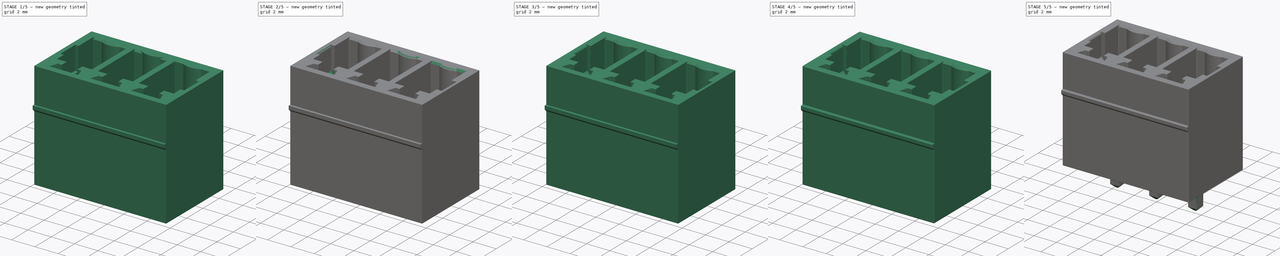
[diagram: build sequence overview — one tinted view per stage of 5, left to right]
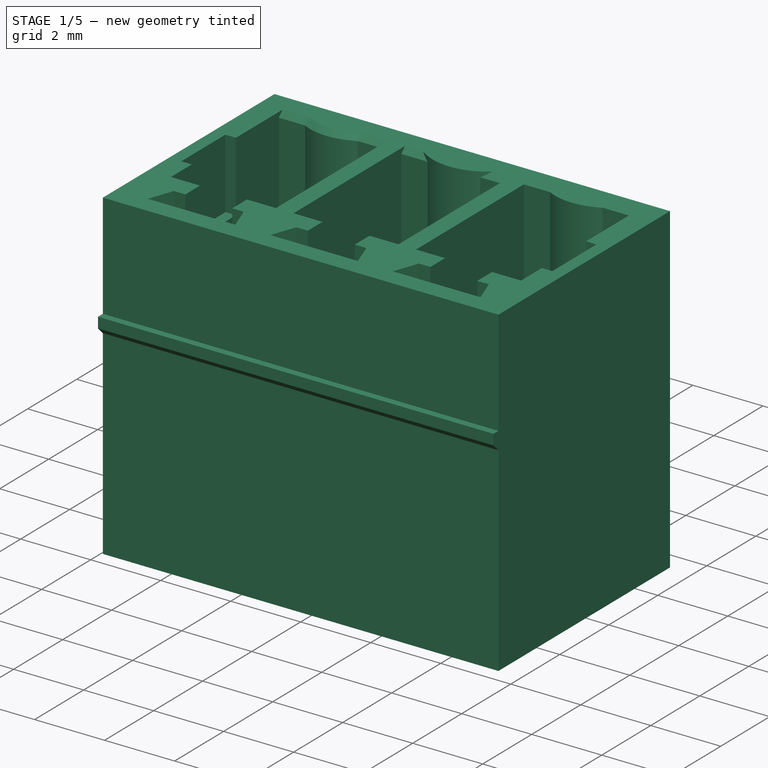
[diagram: stage 1 of 5 — iso view after this stage's code; geometry added in this stage tinted green]
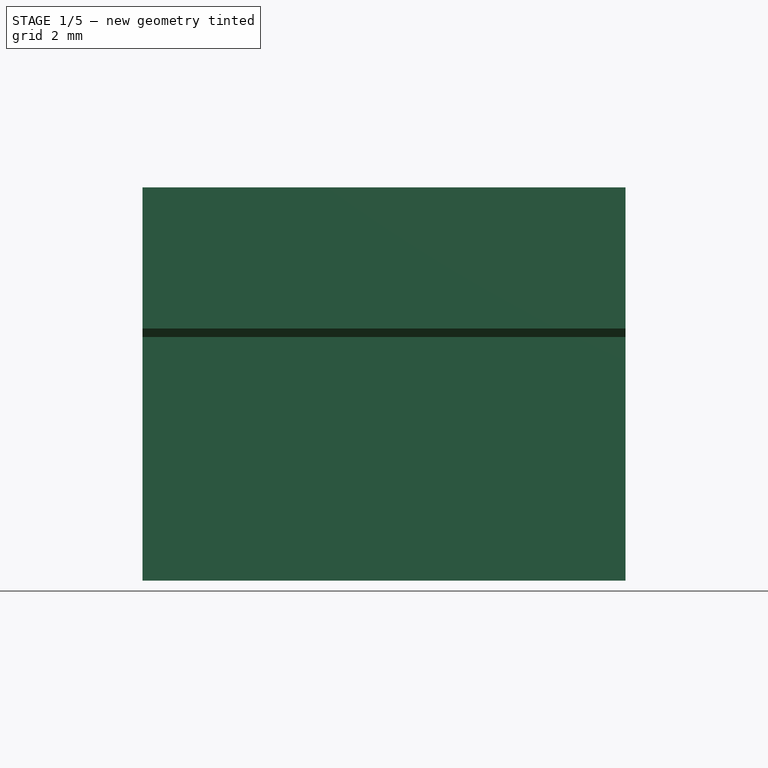
[diagram: stage 1 of 5 — front view after this stage's code; geometry added in this stage tinted green]
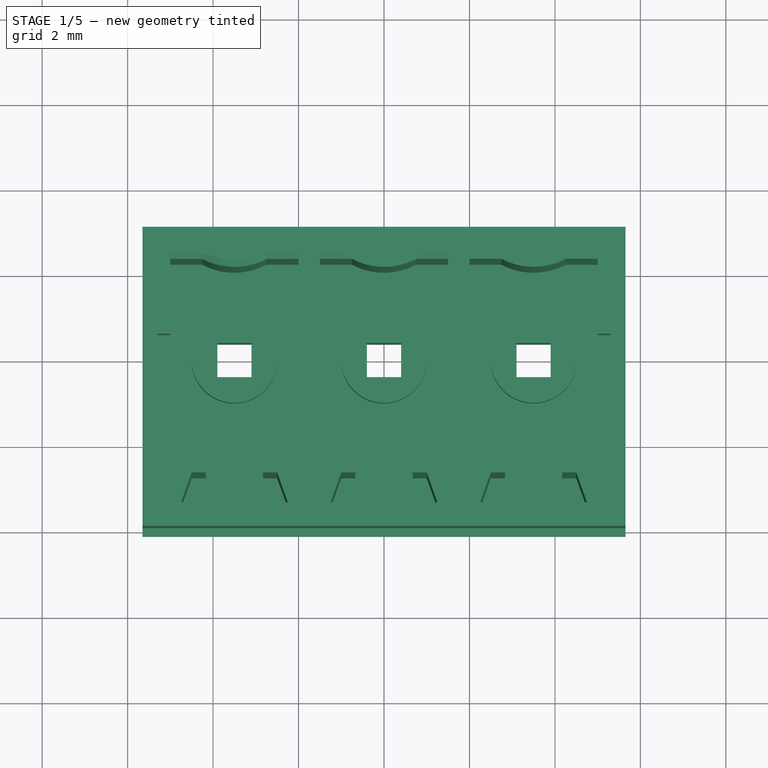
[diagram: stage 1 of 5 — top view after this stage's code; geometry added in this stage tinted green]
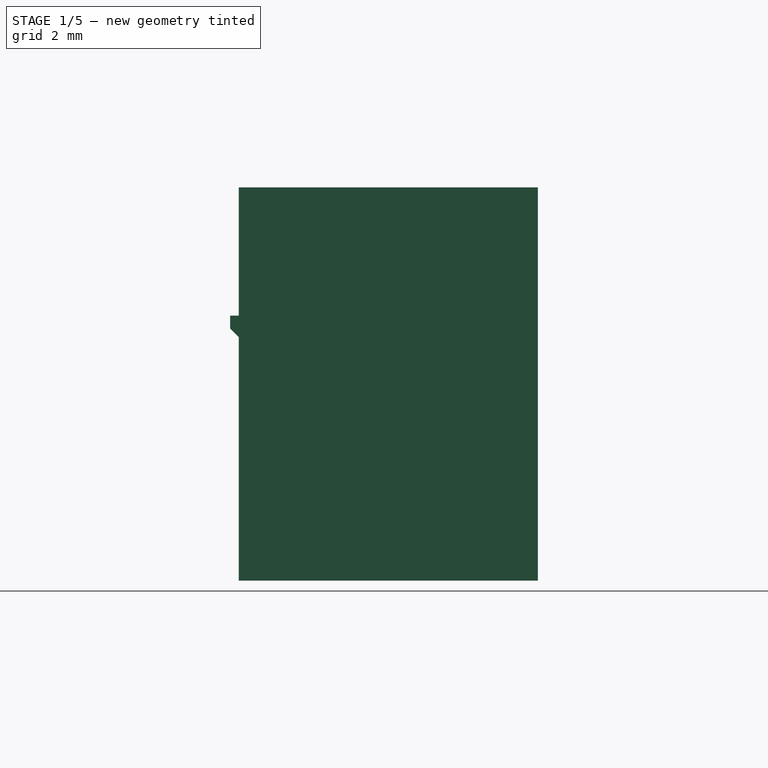
[diagram: stage 1 of 5 — right view after this stage's code; geometry added in this stage tinted green]
FCSTD DOCUMENT  (FreeCAD 0.15R4671 (Git))
Label: DEGSON_15EDGVC-3.5-03P-14-00A
License: All rights reserved
LicenseURL: http://en.wikipedia.org/wiki/All_rights_reserved
objects: PartDesign::Fillet×35, PartDesign::Chamfer×18, Sketcher::SketchObject×7, PartDesign::Pad×5, PartDesign::Pocket×2, PartDesign::LinearPattern×2, Image::ImagePlane×1, Part::Cut×1
note: 77 computed .brp shape members not serialized (recipe doc carries the construction recipe); baked Part::Feature solids carry a one-line shape summary decoded from their .brp

FEATURE [Sketcher::SketchObject] Sketch001
  Placement = pos=(0,0,0) rot=(-1,0,0;3.14159rad)
  sketch-geometry (4):
    g0: LineSegment StartX=-5.65 StartY=4 StartZ=0 EndX=5.65 EndY=4 EndZ=0
    g1: LineSegment StartX=5.65 StartY=4 StartZ=0 EndX=5.65 EndY=-3 EndZ=0
    g2: LineSegment StartX=5.65 StartY=-3 StartZ=0 EndX=-5.65 EndY=-3 EndZ=0
    g3: LineSegment StartX=-5.65 StartY=-3 StartZ=0 EndX=-5.65 EndY=4 EndZ=0
  constraints (12):
    c: Coincident(g0,g1)
    c: Coincident(g1,g2)
    c: Coincident(g2,g3)
    c: Coincident(g3,g0)
    c: Horizontal(g0)
    c: Horizontal(g2)
    c: Vertical(g1)
    c: Vertical(g3)
    c: DistanceY(g3) = 7
    c: DistanceY(g-1,g2) = -3
    c: DistanceX(g0) = 11.3
    c: DistanceX(g-1,g0) = -5.65
FEATURE [PartDesign::Pad] Pad001
  Length = 9.2
  Length2 = 100
  Placement = pos=(0,0,0) rot=(-1,0,0;3.14159rad)
  Sketch = -> Sketch001
  Type = 0
FEATURE [Sketcher::SketchObject] Sketch002
  Support = -> Pad001 [Face5]
  sketch-geometry (14):
    g0: LineSegment StartX=-2 StartY=2.25 StartZ=0 EndX=-2.75 EndY=2.25 EndZ=0
    g1: LineSegment StartX=-4.25 StartY=2.25 StartZ=0 EndX=-5 EndY=2.25 EndZ=0
    g2: LineSegment StartX=-5 StartY=2.25 StartZ=0 EndX=-5 EndY=-2.15 EndZ=0
    g3: LineSegment StartX=-5 StartY=-2.15 StartZ=0 EndX=-4.17 EndY=-2.15 EndZ=0
    g4: LineSegment StartX=-4.17 StartY=-2.15 StartZ=0 EndX=-4.17 EndY=-2.75 EndZ=0
    g5: LineSegment StartX=-4.17 StartY=-2.75 StartZ=0 EndX=-4.5 EndY=-2.75 EndZ=0
    g6: LineSegment StartX=-4.5 StartY=-2.75 StartZ=0 EndX=-4.75 EndY=-3.45 EndZ=0
    g7: LineSegment StartX=-4.75 StartY=-3.45 StartZ=0 EndX=-2.25 EndY=-3.45 EndZ=0
    g8: LineSegment StartX=-2.25 StartY=-3.45 StartZ=0 EndX=-2.5 EndY=-2.75 EndZ=0
    g9: LineSegment StartX=-2.5 StartY=-2.75 StartZ=0 EndX=-2.83 EndY=-2.75 EndZ=0
    g10: LineSegment StartX=-2.83 StartY=-2.75 StartZ=0 EndX=-2.83 EndY=-2.15 EndZ=0
    g11: LineSegment StartX=-2.83 StartY=-2.15 StartZ=0 EndX=-2 EndY=-2.15 EndZ=0
    g12: LineSegment StartX=-2 StartY=-2.15 StartZ=0 EndX=-2 EndY=2.25 EndZ=0
    g13: ArcOfCircle CenterX=-3.5 CenterY=3.66333 CenterZ=0 NormalX=0 NormalY=0 NormalZ=1 Radius=1.6 StartAngle=4.22451 EndAngle=5.20026
  constraints (43):
    c: Horizontal(g0)
    c: Horizontal(g1)
    c: Equal(g1,g0)
    c: Coincident(g1,g2)
    c: Vertical(g2)
    c: Coincident(g2,g3)
    c: Horizontal(g3)
    c: Coincident(g3,g4)
    c: Vertical(g4)
    c: Coincident(g4,g5)
    c: Horizontal(g5)
    c: Coincident(g5,g6)
    c: Coincident(g6,g7)
    c: Horizontal(g7)
    c: Coincident(g8,g9)
    c: Horizontal(g9)
    c: Coincident(g9,g10)
    c: Vertical(g10)
    c: Coincident(g10,g11)
    c: Horizontal(g11)
    c: Coincident(g11,g12)
    c: Vertical(g12)
    c: Coincident(g0,g12)
    c: Equal(g11,g3)
    c: Equal(g2,g12)
    c: Equal(g10,g4)
    c: Equal(g5,g9)
    c: Coincident(g8,g7)
    c: Coincident(g13,g0)
    c: Coincident(g13,g1)
    c: DistanceX(g5,g8) = 2
    c: DistanceX(g7) = 2.5
    c: DistanceY(g6,g5) = 0.7
    c: DistanceX(g5) = -0.33
    c: DistanceY(g-1,g6) = -3.45
    c: DistanceX(g2,g11) = 3
    c: DistanceY(g2) = -4.4
    c: Radius(g13) = 1.6
    c: DistanceY(g4) = -0.6
    c: DistanceY(g-1,g0) = 2.25
    c: DistanceX(g0,g1) = -1.5
    c: DistanceX(g-1,g2) = -5
    c: Angle(g7,g6) = 1.22777
FEATURE [Image::ImagePlane] ImagePlane
  Placement = pos=(0,-0.55,0) rot=(0,0,1;0rad)
  XSize = 11.3
  YSize = 7
FEATURE [PartDesign::Pocket] Pocket
  Length = 8
  Placement = pos=(0,0,0) rot=(-1,0,0;3.14159rad)
  Sketch = -> Sketch002
  Type = 0
FEATURE [PartDesign::LinearPattern] LinearPattern
  Direction = -> Sketch002 [H_Axis]
  Length = 7
  Occurrences = 3
  Originals = -> [Pocket]
  Placement = pos=(0,0,0) rot=(-1,0,0;3.14159rad)
FEATURE [Sketcher::SketchObject] Sketch003
  Support = -> LinearPattern [Face4]
  sketch-geometry (8):
    g0: LineSegment StartX=-4 StartY=0.5 StartZ=0 EndX=-5.3 EndY=0.5 EndZ=0
    g1: LineSegment StartX=-5.3 StartY=0.5 StartZ=0 EndX=-5.3 EndY=-1.3 EndZ=0
    g2: LineSegment StartX=-5.3 StartY=-1.3 StartZ=0 EndX=-4 EndY=-1.3 EndZ=0
    g3: LineSegment StartX=-4 StartY=-1.3 StartZ=0 EndX=-4 EndY=0.5 EndZ=0
    g4: LineSegment StartX=5.3 StartY=0.5 StartZ=0 EndX=4 EndY=0.5 EndZ=0
    g5: LineSegment StartX=4 StartY=0.5 StartZ=0 EndX=4 EndY=-1.3 EndZ=0
    g6: LineSegment StartX=4 StartY=-1.3 StartZ=0 EndX=5.3 EndY=-1.3 EndZ=0
    g7: LineSegment StartX=5.3 StartY=-1.3 StartZ=0 EndX=5.3 EndY=0.5 EndZ=0
  constraints (24):
    c: Coincident(g0,g1)
    c: Coincident(g1,g2)
    c: Coincident(g2,g3)
    c: Coincident(g3,g0)
    c: Horizontal(g0)
    c: Horizontal(g2)
    c: Vertical(g1)
    c: Vertical(g3)
    c: DistanceX(g2) = 1.3
    c: DistanceY(g1) = -1.8
    c: DistanceY(g-1,g0) = 0.5
    c: DistanceX(g-1,g2) = -4
    c: Coincident(g4,g5)
    c: Coincident(g5,g6)
    c: Coincident(g6,g7)
    c: Coincident(g7,g4)
    c: Horizontal(g4)
    c: Horizontal(g6)
    c: Vertical(g5)
    c: Vertical(g7)
    c: DistanceY(g-1,g4) = 0.5
    c: DistanceX(g-1,g5) = 4
    c: Equal(g4,g2)
    c: Equal(g7,g1)
FEATURE [PartDesign::Pocket] Pocket001
  Length = 2
  Placement = pos=(0,0,0) rot=(-1,0,0;3.14159rad)
  Sketch = -> Sketch003
  Type = 0
FEATURE [Sketcher::SketchObject] Sketch004
  Placement = pos=(0,0,-2) rot=(1,0,0;3.14159rad)
  sketch-geometry (12):
    g0: LineSegment StartX=-3.9 StartY=0.4 StartZ=0 EndX=-3.1 EndY=0.4 EndZ=0
    g1: LineSegment StartX=-3.1 StartY=0.4 StartZ=0 EndX=-3.1 EndY=-0.4 EndZ=0
    g2: LineSegment StartX=-3.1 StartY=-0.4 StartZ=0 EndX=-3.9 EndY=-0.4 EndZ=0
    g3: LineSegment StartX=-3.9 StartY=-0.4 StartZ=0 EndX=-3.9 EndY=0.4 EndZ=0
    g4: LineSegment StartX=-0.4 StartY=0.4 StartZ=0 EndX=0.4 EndY=0.4 EndZ=0
    g5: LineSegment StartX=0.4 StartY=0.4 StartZ=0 EndX=0.4 EndY=-0.4 EndZ=0
    g6: LineSegment StartX=0.4 StartY=-0.4 StartZ=0 EndX=-0.4 EndY=-0.4 EndZ=0
    g7: LineSegment StartX=-0.4 StartY=-0.4 StartZ=0 EndX=-0.4 EndY=0.4 EndZ=0
    g8: LineSegment StartX=3.1 StartY=0.4 StartZ=0 EndX=3.9 EndY=0.4 EndZ=0
    g9: LineSegment StartX=3.9 StartY=0.4 StartZ=0 EndX=3.9 EndY=-0.4 EndZ=0
    g10: LineSegment StartX=3.9 StartY=-0.4 StartZ=0 EndX=3.1 EndY=-0.4 EndZ=0
    g11: LineSegment StartX=3.1 StartY=-0.4 StartZ=0 EndX=3.1 EndY=0.4 EndZ=0
  constraints (35):
    c: Coincident(g1,g2)
    c: Coincident(g2,g3)
    c: Coincident(g3,g0)
    c: Horizontal(g0)
    c: Horizontal(g2)
    c: Vertical(g3)
    c: Equal(g0,g1)
    c: DistanceX(g0) = 0.8
    c: Coincident(g0,g1)
    c: Vertical(g1)
    c: DistanceX(g-1,g1) = -3.1
    c: DistanceY(g-1,g0) = 0.4
    c: Coincident(g4,g5)
    c: Coincident(g5,g6)
    c: Coincident(g6,g7)
    c: Coincident(g7,g4)
    c: Horizontal(g4)
    c: Horizontal(g6)
    c: Vertical(g5)
    c: Vertical(g7)
    c: Equal(g4,g5)
    c: DistanceX(g4) = 0.8
    c: Symmetric(g4,g5,g-1)
    c: Coincident(g8,g9)
    c: Coincident(g9,g10)
    c: Coincident(g10,g11)
    c: Coincident(g11,g8)
    c: Horizontal(g8)
    c: Horizontal(g10)
    c: Vertical(g9)
    c: Vertical(g11)
    c: Equal(g8,g9)
    c: DistanceX(g8) = 0.8
    c: DistanceX(g-1,g10) = 3.1
    c: DistanceY(g-1,g8) = 0.4
FEATURE [PartDesign::Pad] Pad002
  Length = 10.4
  Length2 = 100
  Placement = pos=(0,0,-2) rot=(1,0,0;3.14159rad)
  Sketch = -> Sketch004
  Type = 0
FEATURE [Sketcher::SketchObject] Sketch005
  Placement = pos=(0,0,-8) rot=(0,0,1;0rad)
  Support = -> Pocket001 [Face55]
  sketch-geometry (1):
    g0: Circle CenterX=-3.5 CenterY=0 CenterZ=0 NormalX=0 NormalY=0 NormalZ=1 Radius=1
  constraints (3):
    c: PointOnObject(g0,g-1)
    c: DistanceX(g-1,g0) = -3.5
    c: Radius(g0) = 1
FEATURE [PartDesign::Pad] Pad003
  Length = 1.2
  Length2 = 100
  Placement = pos=(0,0,0) rot=(-1,0,0;3.14159rad)
  Sketch = -> Sketch005
  Type = 0
FEATURE [PartDesign::LinearPattern] LinearPattern001
  Direction = -> Sketch005 [H_Axis]
  Length = 7
  Occurrences = 3
  Originals = -> [Pad003]
  Placement = pos=(0,0,0) rot=(-1,0,0;3.14159rad)
FEATURE [Part::Cut] Cut
  Base = -> LinearPattern001
  Tool = -> Pad002
FEATURE [Sketcher::SketchObject] Sketch006
  Placement = pos=(0,-4,0) rot=(1,0,0;1.5708rad)
  Support = -> Cut [Face1]
  sketch-geometry (4):
    g0: LineSegment StartX=-5.65 StartY=-3 StartZ=0 EndX=5.65 EndY=-3 EndZ=0
    g1: LineSegment StartX=5.65 StartY=-3 StartZ=0 EndX=5.65 EndY=-3.5 EndZ=0
    g2: LineSegment StartX=5.65 StartY=-3.5 StartZ=0 EndX=-5.65 EndY=-3.5 EndZ=0
    g3: LineSegment StartX=-5.65 StartY=-3.5 StartZ=0 EndX=-5.65 EndY=-3 EndZ=0
  constraints (12):
    c: Coincident(g0,g1)
    c: Coincident(g1,g2)
    c: Coincident(g2,g3)
    c: Coincident(g3,g0)
    c: Horizontal(g0)
    c: Horizontal(g2)
    c: Vertical(g1)
    c: Vertical(g3)
    c: DistanceX(g0) = 11.3
    c: Symmetric(g0,g0,g-2)
    c: DistanceY(g3) = 0.5
    c: DistanceY(g-1,g0) = -3
FEATURE [PartDesign::Pad] Pad004
  Length = 0.2
  Length2 = 100
  Sketch = -> Sketch006
  Type = 0
FEATURE [PartDesign::Chamfer] Chamfer009
  Base = -> Pad004 [Edge3]
  Size = 0.1999
FEATURE [PartDesign::Chamfer] Chamfer010
  Base = -> Chamfer009 [Edge44,Edge28]
  Size = 0.15
FEATURE [PartDesign::Chamfer] Chamfer011
  Base = -> Chamfer010 [Edge2]
  Size = 0.15
FEATURE [PartDesign::Chamfer] Chamfer012
  Base = -> Chamfer011 [Edge41,Edge37]
  Size = 0.15
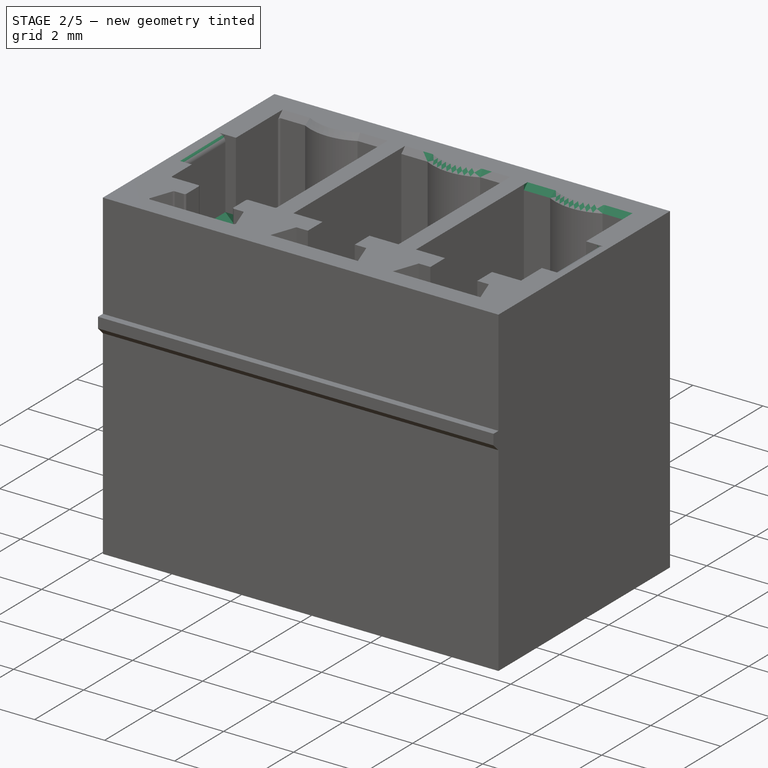
[diagram: stage 2 of 5 — iso view after this stage's code; geometry added in this stage tinted green]
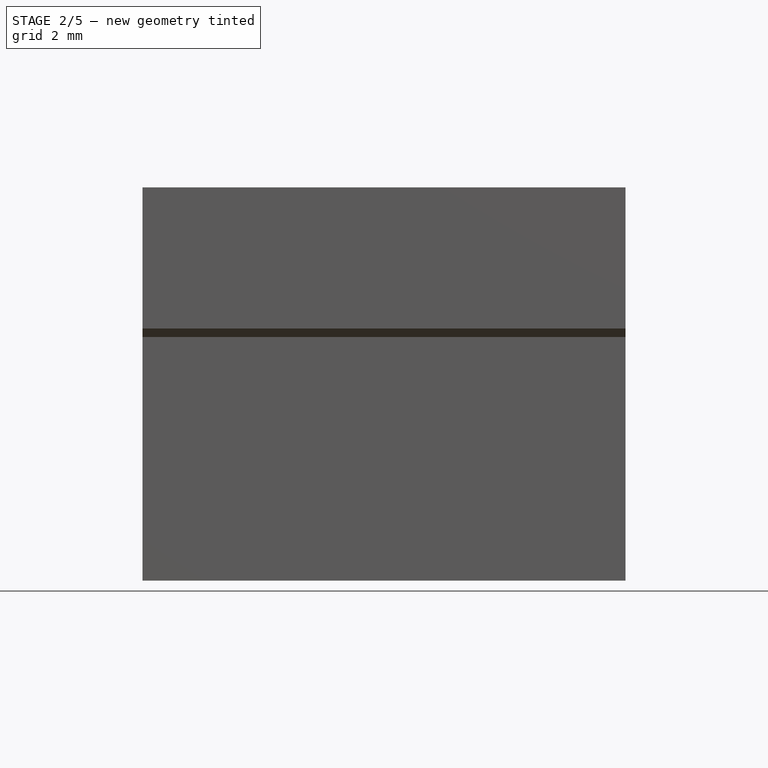
[diagram: stage 2 of 5 — front view after this stage's code; geometry added in this stage tinted green]
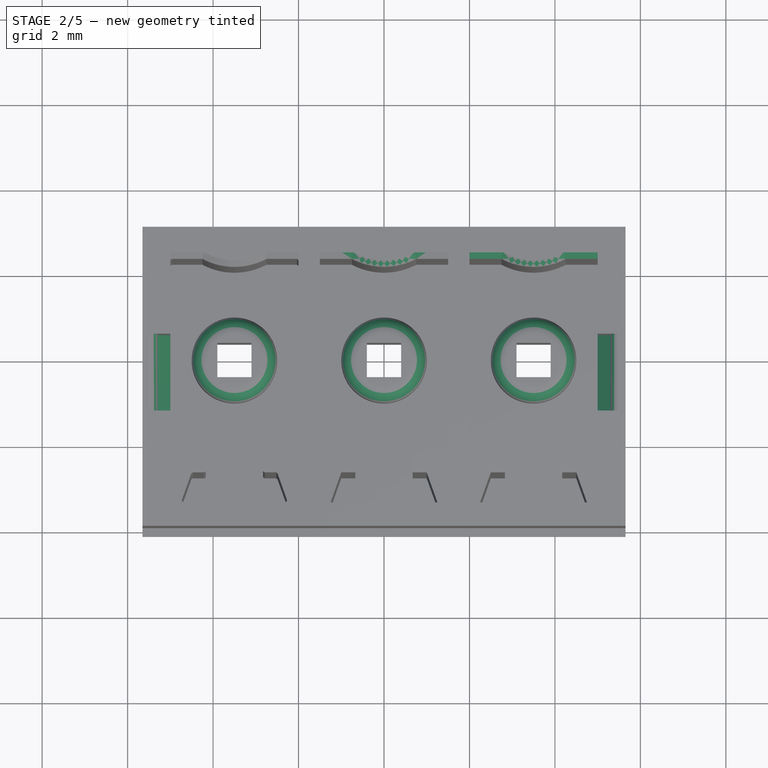
[diagram: stage 2 of 5 — top view after this stage's code; geometry added in this stage tinted green]
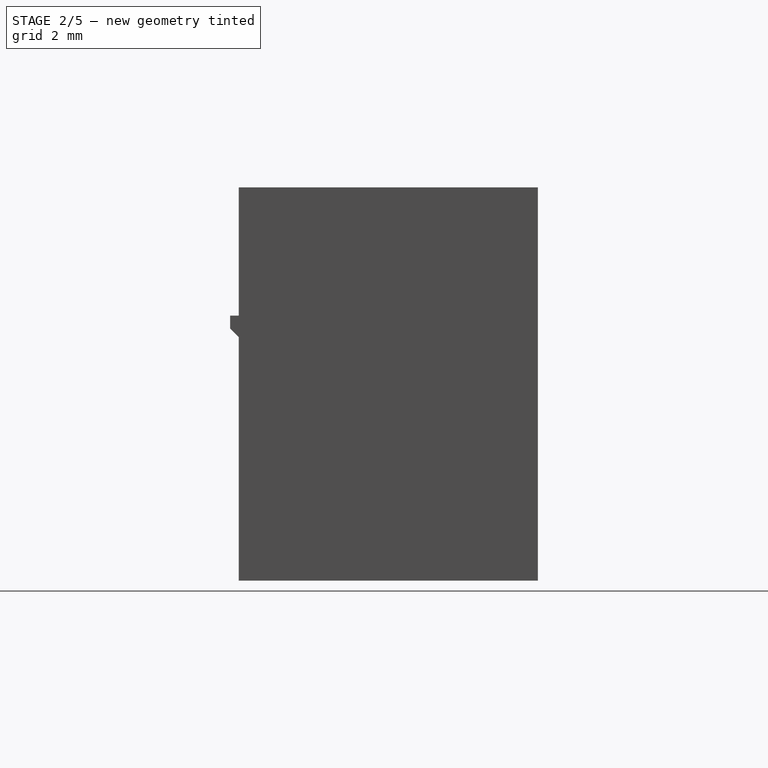
[diagram: stage 2 of 5 — right view after this stage's code; geometry added in this stage tinted green]
FEATURE [PartDesign::Chamfer] Chamfer013
  Base = -> Chamfer012 [Edge2]
  Size = 0.15
FEATURE [PartDesign::Chamfer] Chamfer014
  Base = -> Chamfer013 [Edge52,Edge54]
  Size = 0.15
FEATURE [PartDesign::Chamfer] Chamfer015
  Base = -> Chamfer014 [Edge2]
  Size = 0.15
FEATURE [PartDesign::Fillet] Fillet003
  Base = -> Chamfer015 [Edge243]
  Radius = 0.4
FEATURE [PartDesign::Fillet] Fillet004
  Base = -> Fillet003 [Edge266]
  Radius = 0.4
FEATURE [PartDesign::Fillet] Fillet005
  Base = -> Fillet004 [Edge171]
  Radius = 0.4
FEATURE [PartDesign::Chamfer] Chamfer016
  Base = -> Fillet005 [Edge225]
  Size = 0.29999
FEATURE [PartDesign::Chamfer] Chamfer017
  Base = -> Chamfer016 [Edge131]
  Size = 0.29999
FEATURE [PartDesign::Fillet] Fillet006
  Base = -> Chamfer017 [Edge68]
  Radius = 0.2
FEATURE [PartDesign::Fillet] Fillet007
  Base = -> Fillet006 [Edge45]
  Radius = 0.2
FEATURE [PartDesign::Fillet] Fillet008
  Base = -> Fillet007 [Edge163,Edge161,Edge136,Edge135]
  Radius = 0.05
FEATURE [PartDesign::Fillet] Fillet009
  Base = -> Fillet008 [Edge95,Edge118,Edge98,Edge113,Edge111,Edge102,Edge107,Edge109]
  Radius = 0.05
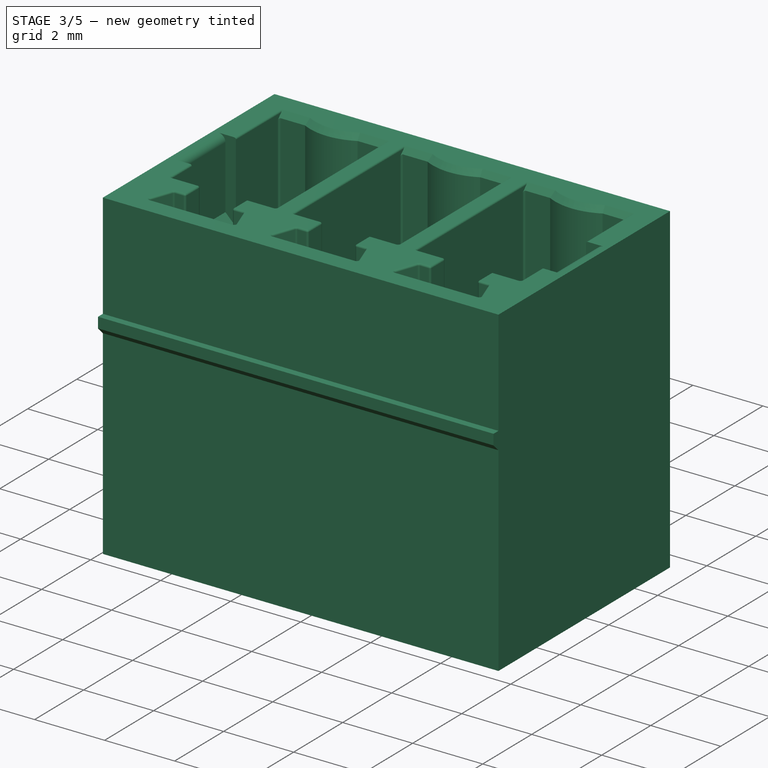
[diagram: stage 3 of 5 — iso view after this stage's code; geometry added in this stage tinted green]
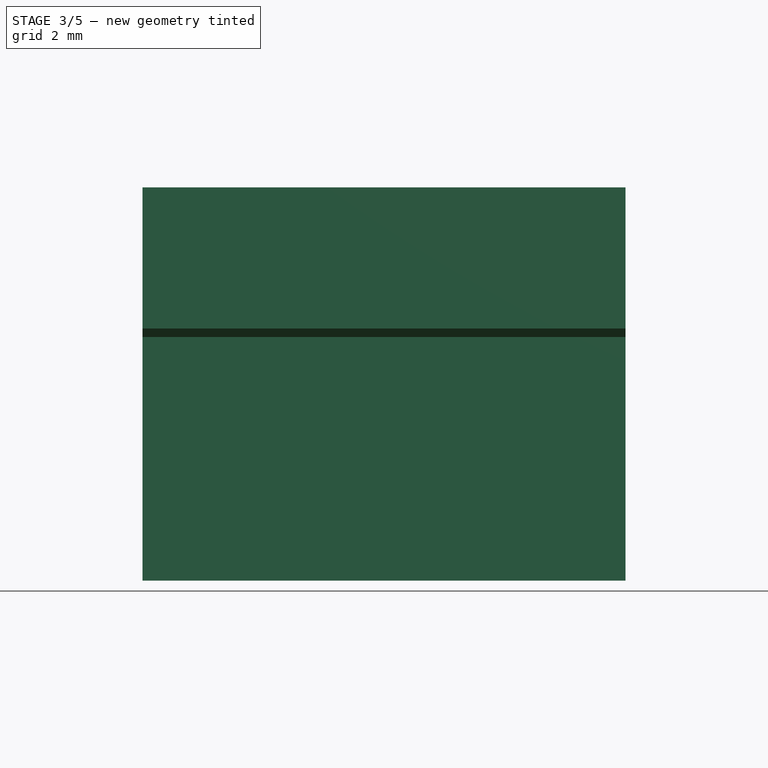
[diagram: stage 3 of 5 — front view after this stage's code; geometry added in this stage tinted green]
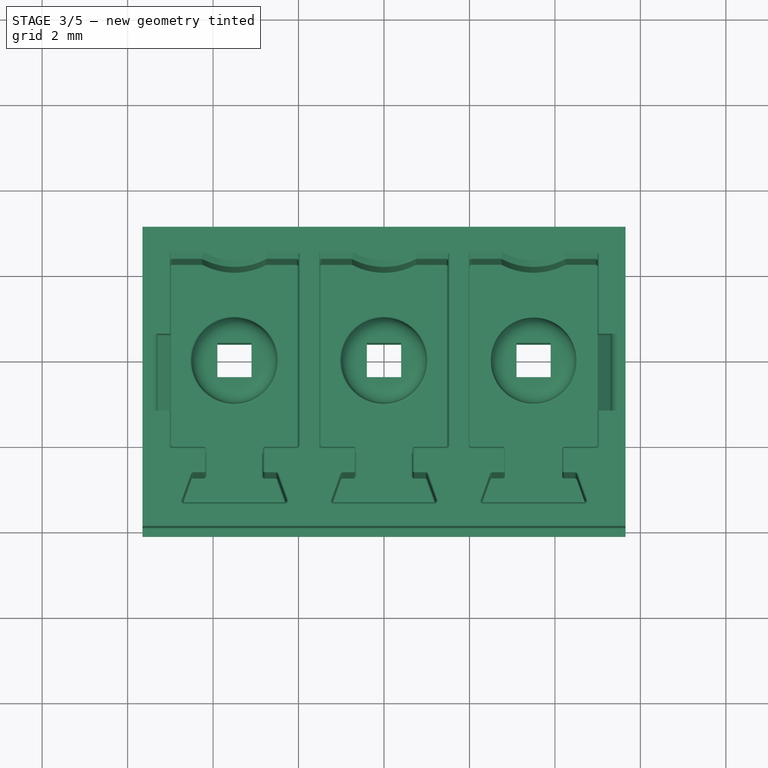
[diagram: stage 3 of 5 — top view after this stage's code; geometry added in this stage tinted green]
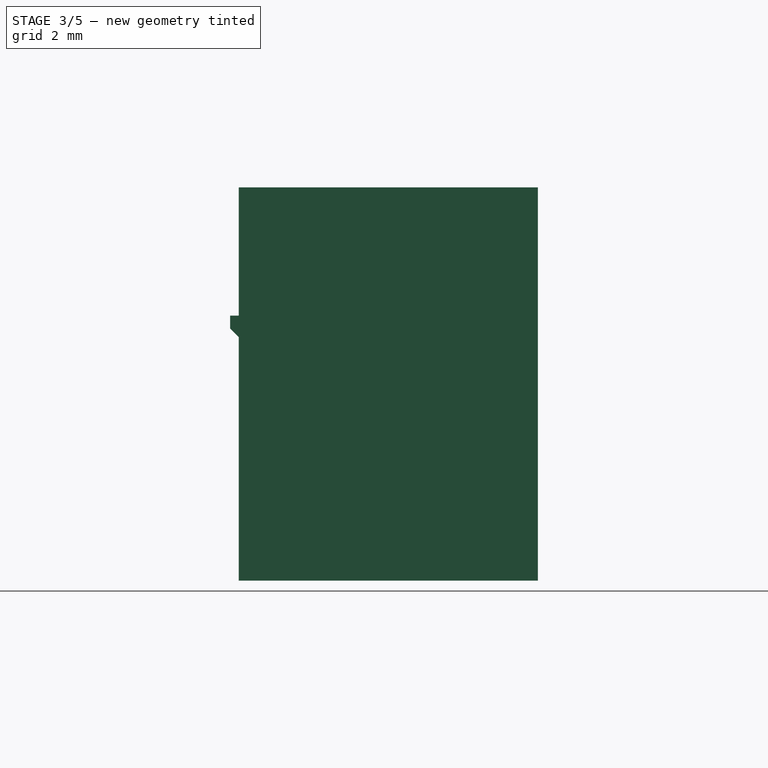
[diagram: stage 3 of 5 — right view after this stage's code; geometry added in this stage tinted green]
FEATURE [PartDesign::Fillet] Fillet010
  Base = -> Fillet009 [Edge207,Edge221,Edge209,Edge223]
  Radius = 0.05
FEATURE [PartDesign::Fillet] Fillet011
  Base = -> Fillet010 [Edge122,Edge96,Edge102,Edge120,Edge114,Edge104,Edge107,Edge111]
  Radius = 0.05
FEATURE [PartDesign::Fillet] Fillet012
  Base = -> Fillet011 [Edge267,Edge263,Edge236,Edge233]
  Radius = 0.05
FEATURE [PartDesign::Fillet] Fillet013
  Base = -> Fillet012 [Edge137,Edge115,Edge132,Edge117,Edge130,Edge128,Edge121,Edge126]
  Radius = 0.05
FEATURE [PartDesign::Fillet] Fillet014
  Base = -> Fillet013 [Edge36]
  Radius = 0.05
FEATURE [PartDesign::Fillet] Fillet015
  Base = -> Fillet014 [Edge11]
  Radius = 0.05
FEATURE [PartDesign::Fillet] Fillet016
  Base = -> Fillet015 [Edge39]
  Radius = 0.05
FEATURE [PartDesign::Fillet] Fillet017
  Base = -> Fillet016 [Edge98]
  Radius = 0.05
FEATURE [PartDesign::Fillet] Fillet018
  Base = -> Fillet017 [Edge11]
  Radius = 0.05
FEATURE [PartDesign::Fillet] Fillet019
  Base = -> Fillet018 [Edge514]
  Radius = 0.05
FEATURE [PartDesign::Fillet] Fillet020
  Base = -> Fillet019 [Edge6]
  Radius = 0.05
FEATURE [PartDesign::Fillet] Fillet021
  Base = -> Fillet020 [Edge584]
  Radius = 0.05
FEATURE [PartDesign::Fillet] Fillet022
  Base = -> Fillet021 [Edge6]
  Radius = 0.05
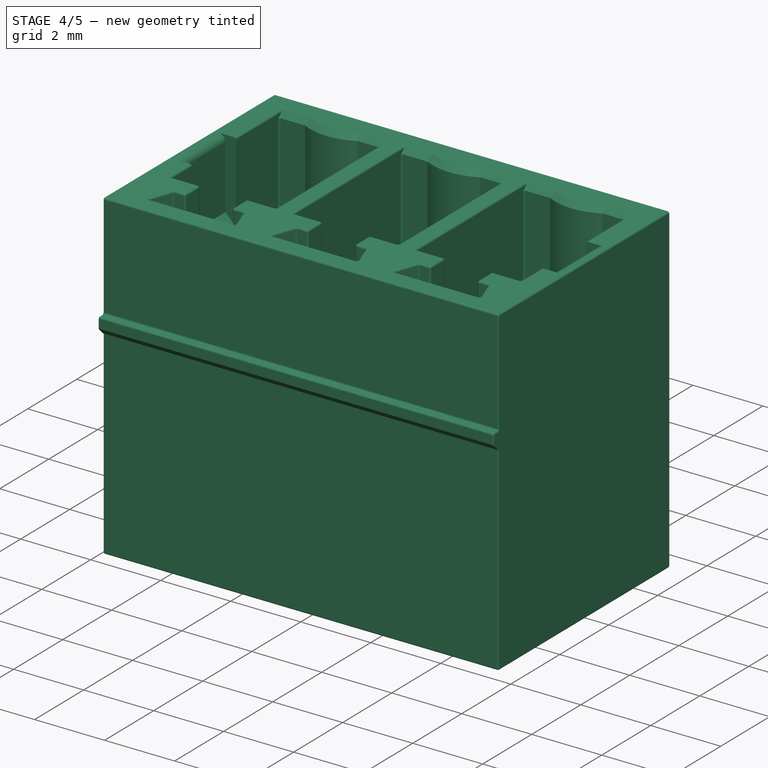
[diagram: stage 4 of 5 — iso view after this stage's code; geometry added in this stage tinted green]
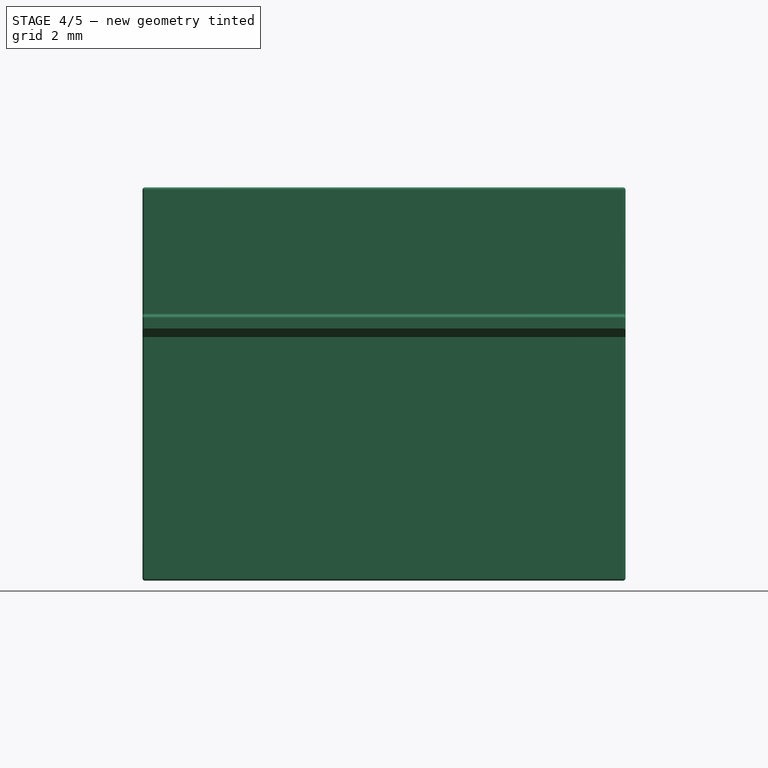
[diagram: stage 4 of 5 — front view after this stage's code; geometry added in this stage tinted green]
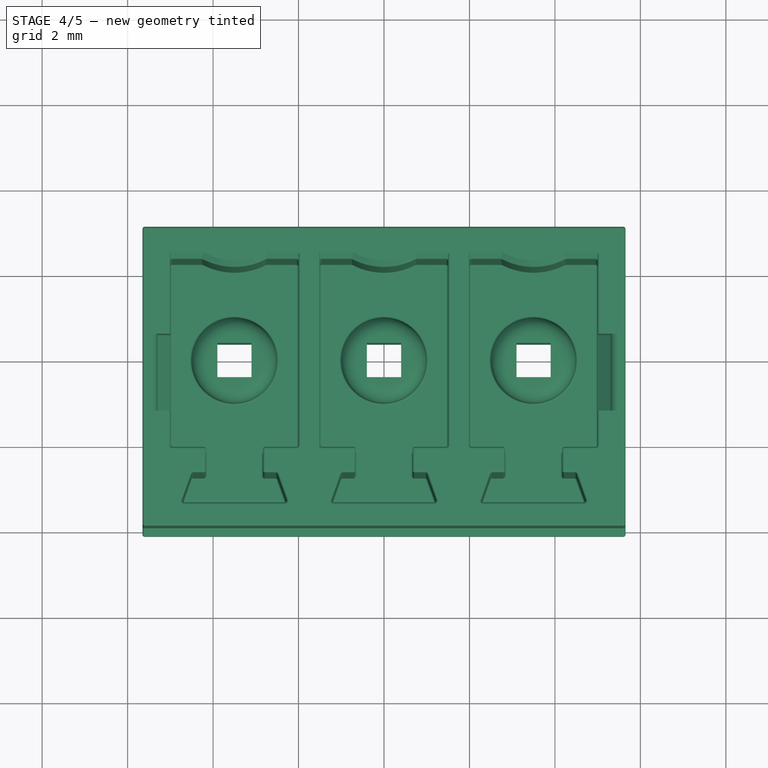
[diagram: stage 4 of 5 — top view after this stage's code; geometry added in this stage tinted green]
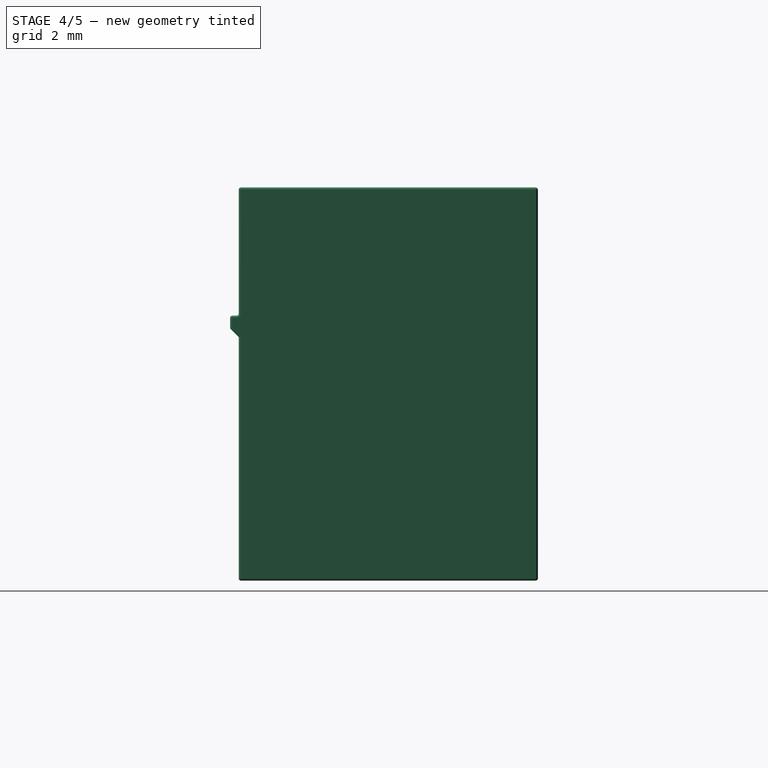
[diagram: stage 4 of 5 — right view after this stage's code; geometry added in this stage tinted green]
FEATURE [PartDesign::Fillet] Fillet023
  Base = -> Fillet022 [Edge640]
  Radius = 0.05
FEATURE [PartDesign::Fillet] Fillet024
  Base = -> Fillet023 [Edge6]
  Radius = 0.05
FEATURE [PartDesign::Fillet] Fillet025
  Base = -> Fillet024 [Edge242,Edge243,Edge241,Edge240]
  Radius = 0.05
FEATURE [PartDesign::Fillet] Fillet026
  Base = -> Fillet025 [Edge509,Edge313,Edge321,Edge319]
  Radius = 0.05
FEATURE [PartDesign::Fillet] Fillet027
  Base = -> Fillet026 [Edge1]
  Radius = 0.049
FEATURE [PartDesign::Fillet] Fillet028
  Base = -> Fillet027 [Edge53]
  Radius = 0.049
FEATURE [PartDesign::Fillet] Fillet029
  Base = -> Fillet028 [Edge186]
  Radius = 0.05
FEATURE [PartDesign::Fillet] Fillet030
  Base = -> Fillet029 [Edge19]
  Radius = 0.05
FEATURE [PartDesign::Fillet] Fillet031
  Base = -> Fillet030 [Edge5]
  Radius = 0.049
FEATURE [PartDesign::Fillet] Fillet032
  Base = -> Fillet031 [Edge5]
  Radius = 0.049
FEATURE [PartDesign::Fillet] Fillet033
  Base = -> Fillet032 [Edge61]
  Radius = 0.049
FEATURE [PartDesign::Fillet] Fillet034  label="Module"
  Base = -> Fillet033 [Edge19]
  Radius = 0.049
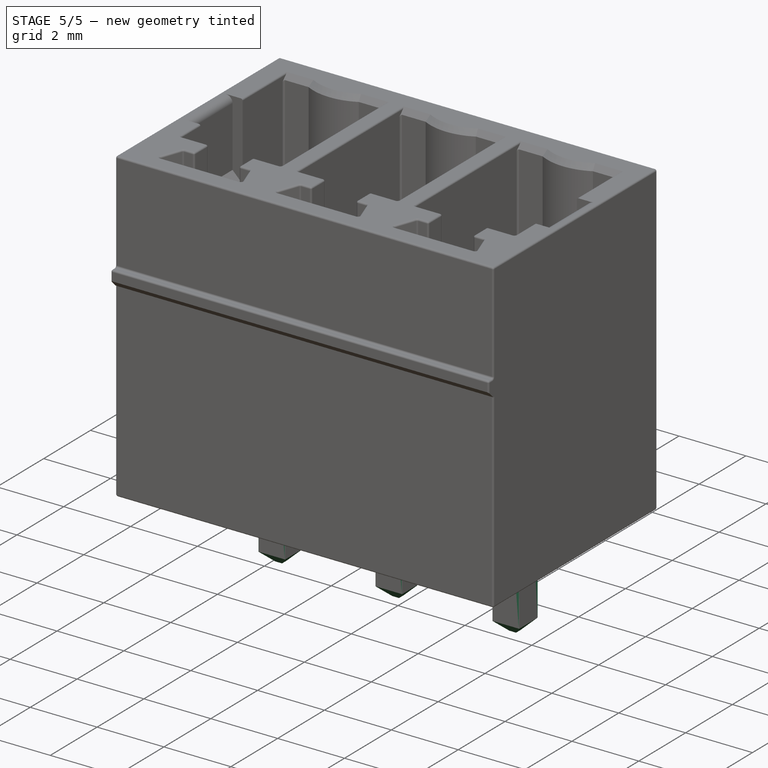
[diagram: stage 5 of 5 — iso view after this stage's code; geometry added in this stage tinted green]
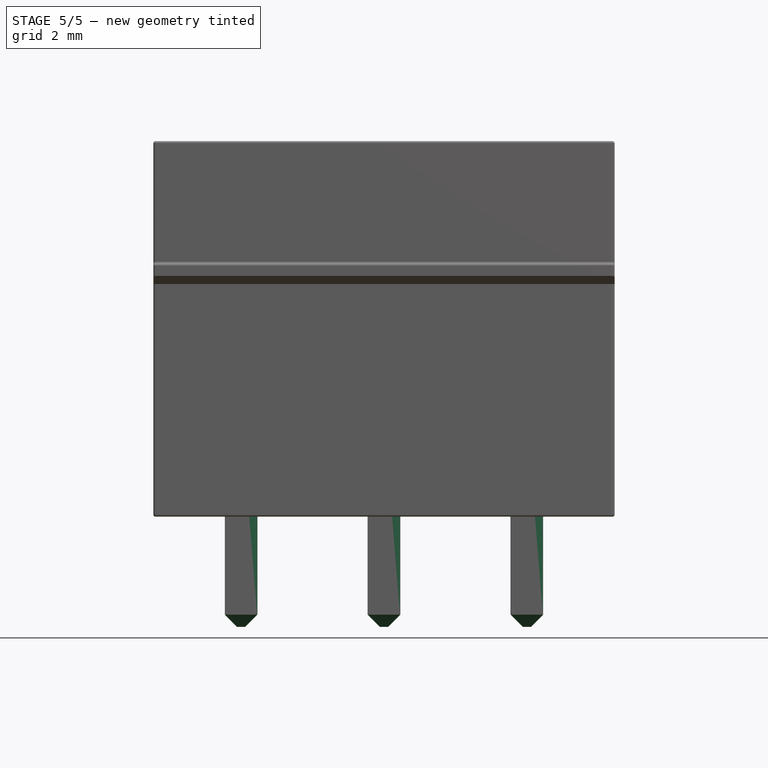
[diagram: stage 5 of 5 — front view after this stage's code; geometry added in this stage tinted green]
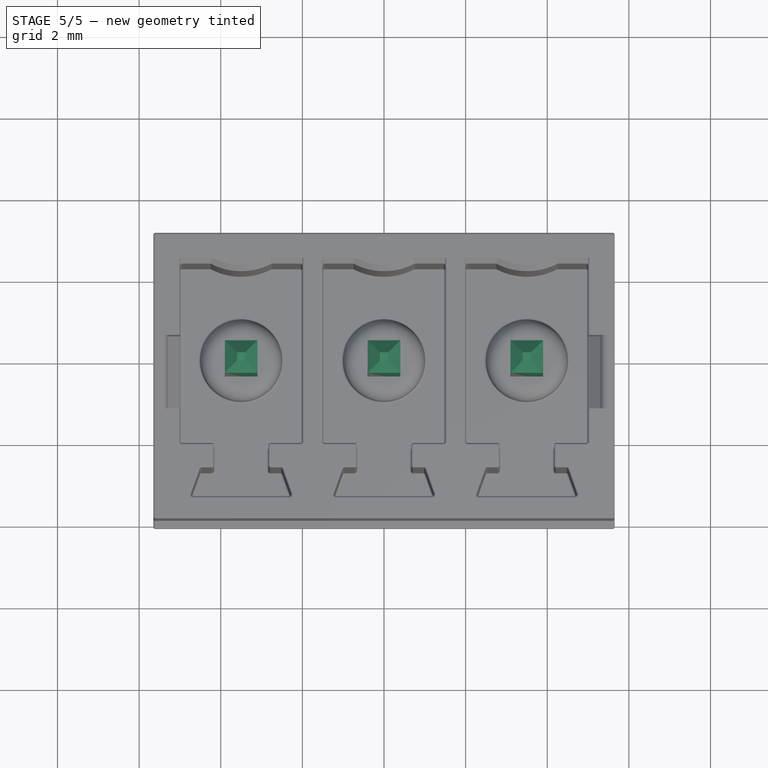
[diagram: stage 5 of 5 — top view after this stage's code; geometry added in this stage tinted green]
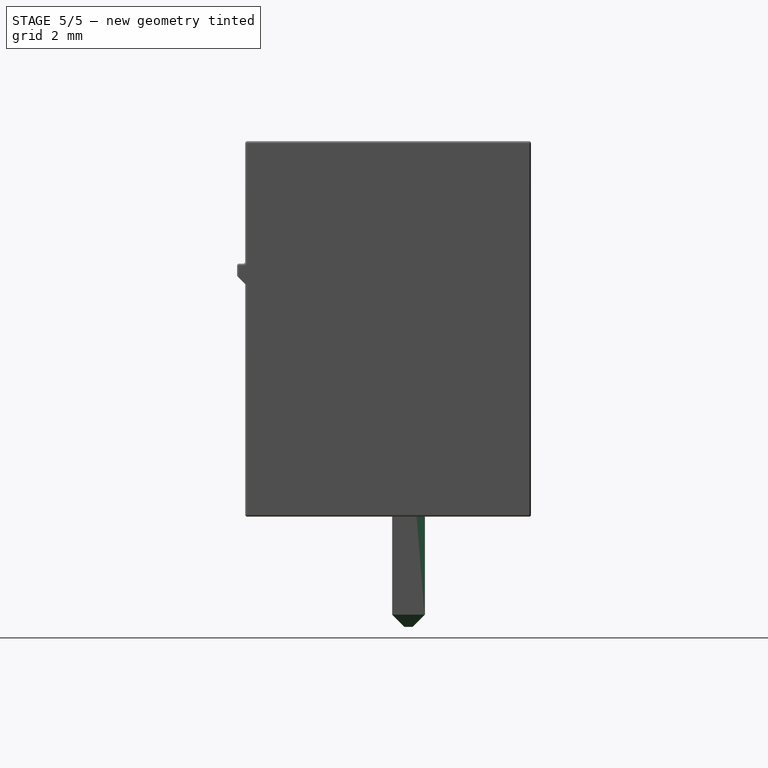
[diagram: stage 5 of 5 — right view after this stage's code; geometry added in this stage tinted green]
FEATURE [Sketcher::SketchObject] Sketch
  Placement = pos=(0,0,-1.5) rot=(-1,0,0;3.14159rad)
  sketch-geometry (12):
    g0: LineSegment StartX=-3.9 StartY=0.4 StartZ=0 EndX=-3.1 EndY=0.4 EndZ=0
    g1: LineSegment StartX=-3.1 StartY=0.4 StartZ=0 EndX=-3.1 EndY=-0.4 EndZ=0
    g2: LineSegment StartX=-3.1 StartY=-0.4 StartZ=0 EndX=-3.9 EndY=-0.4 EndZ=0
    g3: LineSegment StartX=-3.9 StartY=-0.4 StartZ=0 EndX=-3.9 EndY=0.4 EndZ=0
    g4: LineSegment StartX=-0.4 StartY=0.4 StartZ=0 EndX=0.4 EndY=0.4 EndZ=0
    g5: LineSegment StartX=0.4 StartY=0.4 StartZ=0 EndX=0.4 EndY=-0.4 EndZ=0
    g6: LineSegment StartX=0.4 StartY=-0.4 StartZ=0 EndX=-0.4 EndY=-0.4 EndZ=0
    g7: LineSegment StartX=-0.4 StartY=-0.4 StartZ=0 EndX=-0.4 EndY=0.4 EndZ=0
    g8: LineSegment StartX=3.1 StartY=0.4 StartZ=0 EndX=3.9 EndY=0.4 EndZ=0
    g9: LineSegment StartX=3.9 StartY=0.4 StartZ=0 EndX=3.9 EndY=-0.4 EndZ=0
    g10: LineSegment StartX=3.9 StartY=-0.4 StartZ=0 EndX=3.1 EndY=-0.4 EndZ=0
    g11: LineSegment StartX=3.1 StartY=-0.4 StartZ=0 EndX=3.1 EndY=0.4 EndZ=0
  constraints (35):
    c: Coincident(g1,g2)
    c: Coincident(g2,g3)
    c: Coincident(g3,g0)
    c: Horizontal(g0)
    c: Horizontal(g2)
    c: Vertical(g3)
    c: Equal(g0,g1)
    c: DistanceX(g0) = 0.8
    c: Coincident(g0,g1)
    c: Vertical(g1)
    c: DistanceX(g-1,g1) = -3.1
    c: DistanceY(g-1,g0) = 0.4
    c: Coincident(g4,g5)
    c: Coincident(g5,g6)
    c: Coincident(g6,g7)
    c: Coincident(g7,g4)
    c: Horizontal(g4)
    c: Horizontal(g6)
    c: Vertical(g5)
    c: Vertical(g7)
    c: Equal(g4,g5)
    c: DistanceX(g4) = 0.8
    c: Symmetric(g4,g5,g-1)
    c: Coincident(g8,g9)
    c: Coincident(g9,g10)
    c: Coincident(g10,g11)
    c: Coincident(g11,g8)
    c: Horizontal(g8)
    c: Horizontal(g10)
    c: Vertical(g9)
    c: Vertical(g11)
    c: Equal(g8,g9)
    c: DistanceX(g8) = 0.8
    c: DistanceX(g-1,g10) = 3.1
    c: DistanceY(g-1,g8) = 0.4
FEATURE [PartDesign::Pad] Pad
  Length = 10.4
  Length2 = 100
  Placement = pos=(0,0,-1.5) rot=(-1,0,0;3.14159rad)
  Sketch = -> Sketch
  Type = 0
FEATURE [PartDesign::Chamfer] Chamfer
  Base = -> Pad [Edge15]
  Placement = pos=(0,0,-1.5) rot=(-1,0,0;3.14159rad)
  Size = 0.3
FEATURE [PartDesign::Chamfer] Chamfer001
  Base = -> Chamfer [Edge15]
  Placement = pos=(0,0,-1.5) rot=(-1,0,0;3.14159rad)
  Size = 0.3
FEATURE [PartDesign::Chamfer] Chamfer002
  Base = -> Chamfer001 [Edge7]
  Placement = pos=(0,0,-1.5) rot=(-1,0,0;3.14159rad)
  Size = 0.3
FEATURE [PartDesign::Chamfer] Chamfer003
  Base = -> Chamfer002 [Edge3]
  Placement = pos=(0,0,-1.5) rot=(-1,0,0;3.14159rad)
  Size = 0.3
FEATURE [PartDesign::Chamfer] Chamfer004
  Base = -> Chamfer003 [Edge43,Edge35,Edge38,Edge41]
  Placement = pos=(0,0,-1.5) rot=(-1,0,0;3.14159rad)
  Size = 0.3
FEATURE [PartDesign::Chamfer] Chamfer005
  Base = -> Chamfer004 [Edge51,Edge43,Edge46,Edge49]
  Placement = pos=(0,0,-1.5) rot=(-1,0,0;3.14159rad)
  Size = 0.3
FEATURE [PartDesign::Chamfer] Chamfer006
  Base = -> Chamfer005 [Edge57,Edge60,Edge59,Edge54]
  Placement = pos=(0,0,-1.5) rot=(-1,0,0;3.14159rad)
  Size = 0.3
FEATURE [PartDesign::Chamfer] Chamfer007
  Base = -> Chamfer006 [Edge60,Edge59,Edge55,Edge51]
  Placement = pos=(0,0,-1.5) rot=(-1,0,0;3.14159rad)
  Size = 0.3
FEATURE [PartDesign::Chamfer] Chamfer008
  Base = -> Chamfer007 [Edge68,Edge67,Edge59,Edge63]
  Placement = pos=(0,0,-1.5) rot=(-1,0,0;3.14159rad)
  Size = 0.3
FEATURE [PartDesign::Fillet] Fillet
  Base = -> Chamfer008 [Edge61,Edge72,Edge57,Edge60]
  Placement = pos=(0,0,-1.5) rot=(-1,0,0;3.14159rad)
  Radius = 0.01
FEATURE [PartDesign::Fillet] Fillet001
  Base = -> Fillet [Edge80,Edge77,Edge92,Edge81]
  Placement = pos=(0,0,-1.5) rot=(-1,0,0;3.14159rad)
  Radius = 0.01
FEATURE [PartDesign::Fillet] Fillet002  label="Contacts"
  Base = -> Fillet001 [Edge100,Edge97,Edge112,Edge101]
  Placement = pos=(0,0,-1.5) rot=(-1,0,0;3.14159rad)
  Radius = 0.01
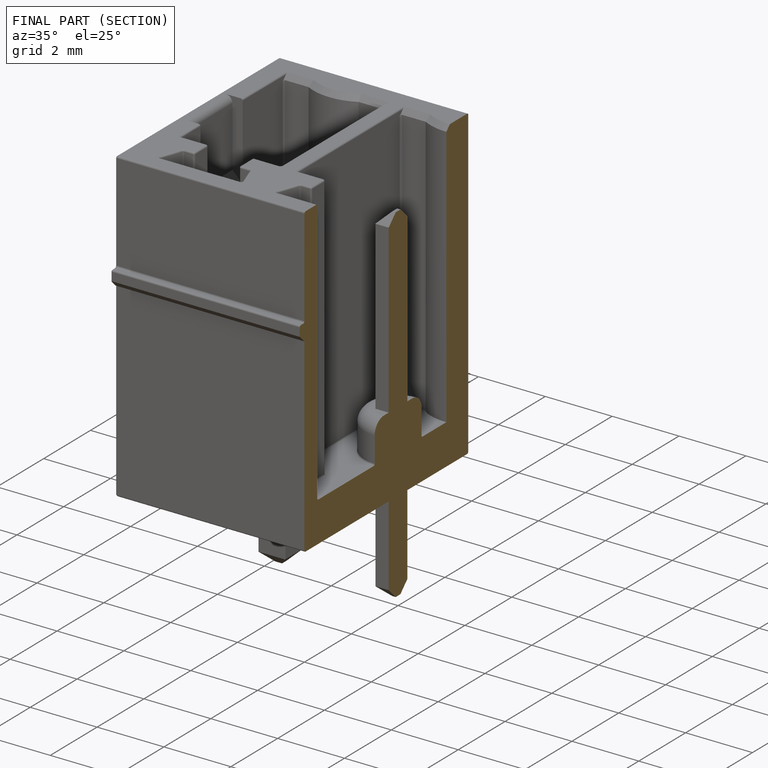
[diagram: finished part — half-section view (interior)]
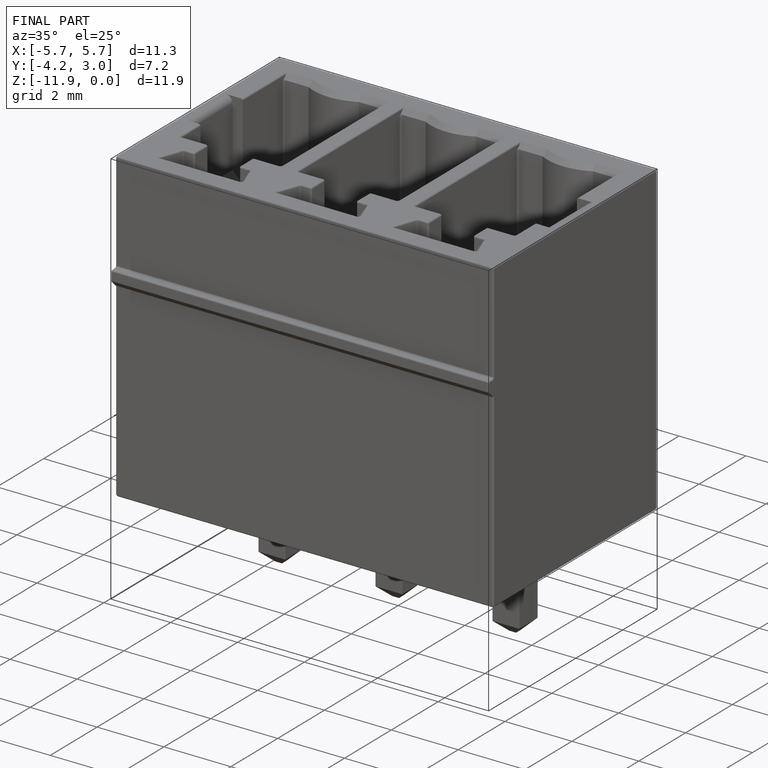
[diagram: finished part — iso view with bounding-box wireframe]
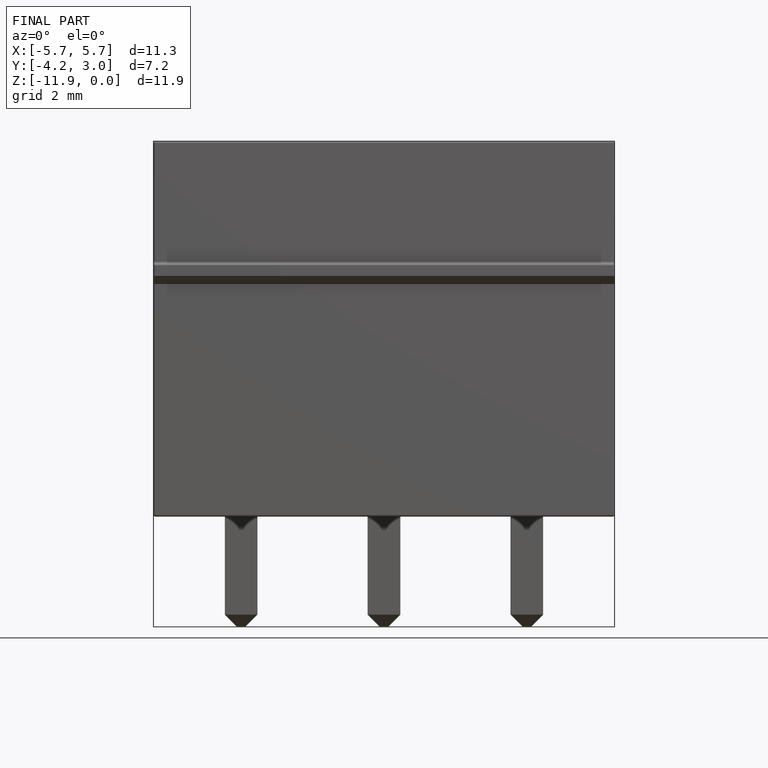
[diagram: finished part — front view with bounding-box wireframe]
